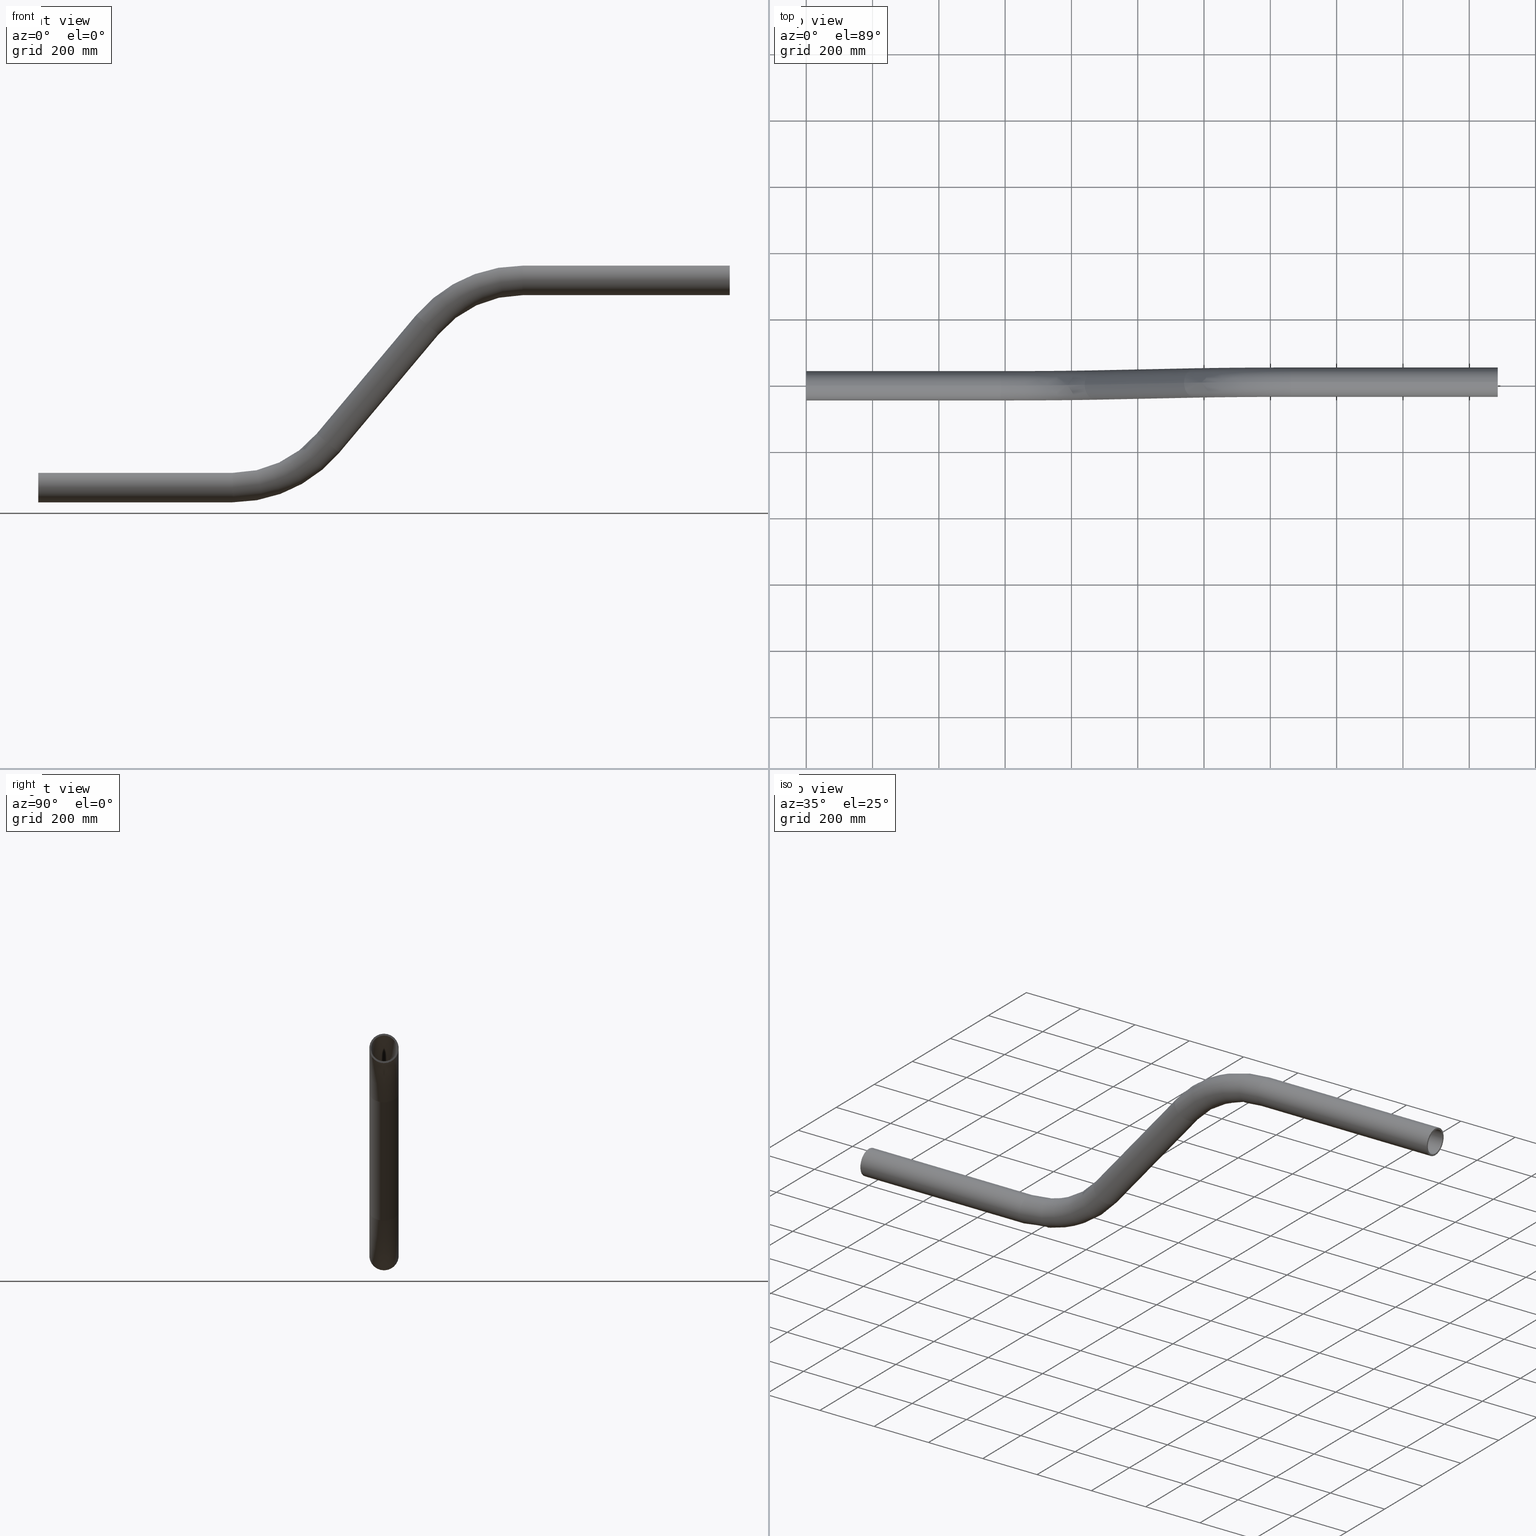
[diagram: canonical four-view strip — front | top / right | iso, engineering-drawing reading convention]
A machine part, canonical four-view strip (front | top / right | iso — engineering-drawing reading convention). The complete STEP part file that produces these views, byte-faithful:
ISO-10303-21;
HEADER;
FILE_DESCRIPTION (( 'STEP AP203' ),
    '1' );
FILE_NAME ('J003435-61_REV_.step',
    '2025-10-22T20:33:59',
    ( '' ),
    ( '' ),
    'SwSTEP 2.0',
    'SolidWorks 2024',
    '' );
FILE_SCHEMA (( 'CONFIG_CONTROL_DESIGN' ));
ENDSEC;

DATA;
#1 = SHAPE_DEFINITION_REPRESENTATION ( #654, #437 ) ;
#2 = CARTESIAN_POINT ( 'NONE',  ( 2086.038216172909415, 0.000000000000000000, 663.9500000000000455 ) ) ;
#3 = APPROVAL_PERSON_ORGANIZATION ( #49, #270, #399 ) ;
#4 = DIRECTION ( 'NONE',  ( 0.000000000000000000, 0.000000000000000000, 1.000000000000000000 ) ) ;
#5 = EDGE_CURVE ( 'NONE', #128, #118, #267, .T. ) ;
#6 = DIRECTION ( 'NONE',  ( -0.000000000000000000, -1.000000000000000000, 0.000000000000000000 ) ) ;
#7 = CIRCLE ( 'NONE', #38, 38.95000000000001705 ) ;
#8 = CARTESIAN_POINT ( 'NONE',  ( 1207.687597308056411, 5.443555022209986486E-15, 462.4734443818851446 ) ) ;
#9 = ADVANCED_FACE ( 'NONE', ( #617 ), #87, .F. ) ;
#10 = DIRECTION ( 'NONE',  ( -0.7660444431189791237, 0.000000000000000000, 0.6427876096865381417 ) ) ;
#11 = DIRECTION ( 'NONE',  ( 0.000000000000000000, 1.000000000000000000, 0.000000000000000000 ) ) ;
#12 = DESIGN_CONTEXT ( 'detailed design', #287, 'design' ) ;
#13 = AXIS2_PLACEMENT_3D ( 'NONE', #129, #449, #195 ) ;
#14 = CARTESIAN_POINT ( 'NONE',  ( 586.7355748789869949, 5.443555022209986486E-15, -44.45000000000000995 ) ) ;
#15 = AXIS2_PLACEMENT_3D ( 'NONE', #104, #364, #212 ) ;
#16 = EDGE_LOOP ( 'NONE', ( #568, #558, #450, #551 ) ) ;
#17 = DIRECTION ( 'NONE',  ( -0.000000000000000000, -1.000000000000000000, 0.000000000000000000 ) ) ;
#18 = DIRECTION ( 'NONE',  ( -0.000000000000000000, -1.000000000000000000, 0.000000000000000000 ) ) ;
#19 = ORIENTED_EDGE ( 'NONE', *, *, #177, .F. ) ;
#20 = FACE_OUTER_BOUND ( 'NONE', #298, .T. ) ;
#21 = AXIS2_PLACEMENT_3D ( 'NONE', #198, #602, #481 ) ;
#22 = ORIENTED_EDGE ( 'NONE', *, *, #417, .T. ) ;
#23 = DIRECTION ( 'NONE',  ( 0.000000000000000000, 0.000000000000000000, 1.000000000000000000 ) ) ;
#24 = DIRECTION ( 'NONE',  ( -0.000000000000000000, -1.000000000000000000, 0.000000000000000000 ) ) ;
#25 = ORIENTED_EDGE ( 'NONE', *, *, #642, .T. ) ;
#26 = EDGE_CURVE ( 'NONE', #292, #655, #276, .T. ) ;
#27 =( NAMED_UNIT ( * ) SI_UNIT ( $, .STERADIAN. ) SOLID_ANGLE_UNIT ( ) );
#28 = CYLINDRICAL_SURFACE ( 'NONE', #639, 38.95000000000003837 ) ;
#29 = VERTEX_POINT ( 'NONE', #8 ) ;
#30 = CARTESIAN_POINT ( 'NONE',  ( 586.7355748789869949, 4.769999282678940016E-15, -38.94999999999996732 ) ) ;
#31 = FACE_BOUND ( 'NONE', #86, .T. ) ;
#32 = ORIENTED_EDGE ( 'NONE', *, *, #395, .F. ) ;
#33 =( GEOMETRIC_REPRESENTATION_CONTEXT ( 3 ) GLOBAL_UNCERTAINTY_ASSIGNED_CONTEXT ( ( #327 ) ) GLOBAL_UNIT_ASSIGNED_CONTEXT ( ( #385, #188, #27 ) ) REPRESENTATION_CONTEXT ( 'NONE', 'WORKASPACE' ) );
#34 = SECURITY_CLASSIFICATION_LEVEL ( 'unclassified' ) ;
#35 = DIRECTION ( 'NONE',  ( 0.6427876096865375866, 0.000000000000000000, 0.7660444431189794567 ) ) ;
#36 = EDGE_CURVE ( 'NONE', #640, #330, #509, .T. ) ;
#37 = VERTEX_POINT ( 'NONE', #370 ) ;
#38 = AXIS2_PLACEMENT_3D ( 'NONE', #516, #153, #4 ) ;
#39 = DATE_AND_TIME ( #347, #116 ) ;
#40 = DIRECTION ( 'NONE',  ( -0.6427876096865378086, -0.000000000000000000, -0.7660444431189793457 ) ) ;
#41 = ORIENTED_EDGE ( 'NONE', *, *, #472, .T. ) ;
#42 = PERSON_AND_ORGANIZATION ( #170, #272 ) ;
#43 = DIRECTION ( 'NONE',  ( 1.000000000000000000, 0.000000000000000000, 0.000000000000000000 ) ) ;
#44 = VERTEX_POINT ( 'NONE', #611 ) ;
#45 = CIRCLE ( 'NONE', #213, 413.9499999999998181 ) ;
#46 = FACE_OUTER_BOUND ( 'NONE', #407, .T. ) ;
#47 = EDGE_CURVE ( 'NONE', #655, #122, #201, .T. ) ;
#48 = AXIS2_PLACEMENT_3D ( 'NONE', #521, #24, #529 ) ;
#49 = PERSON_AND_ORGANIZATION ( #170, #272 ) ;
#50 = FACE_OUTER_BOUND ( 'NONE', #633, .T. ) ;
#51 = DIRECTION ( 'NONE',  ( 1.000000000000000000, 0.000000000000000000, 0.000000000000000000 ) ) ;
#52 = DIRECTION ( 'NONE',  ( -0.000000000000000000, -1.000000000000000000, 0.000000000000000000 ) ) ;
#53 = DIRECTION ( 'NONE',  ( -0.6427876096865375866, -0.000000000000000000, -0.7660444431189794567 ) ) ;
#54 = CIRCLE ( 'NONE', #252, 38.95000000000001705 ) ;
#55 = CARTESIAN_POINT ( 'NONE',  ( 586.7355748789869949, 5.443555022209986486E-15, -44.45000000000000995 ) ) ;
#56 = ORIENTED_EDGE ( 'NONE', *, *, #483, .T. ) ;
#57 = EDGE_CURVE ( 'NONE', #118, #125, #149, .T. ) ;
#58 = VECTOR ( 'NONE', #218, 1000.000000000000000 ) ;
#59 = DIRECTION ( 'NONE',  ( -1.000000000000000000, -0.000000000000000000, -0.000000000000000000 ) ) ;
#60 = CC_DESIGN_PERSON_AND_ORGANIZATION_ASSIGNMENT ( #544, #84, ( #627 ) ) ;
#61 = AXIS2_PLACEMENT_3D ( 'NONE', #210, #507, #203 ) ;
#62 = APPROVAL_PERSON_ORGANIZATION ( #324, #185, #259 ) ;
#63 = CARTESIAN_POINT ( 'NONE',  ( 586.7355748789869949, -5.443555022209986486E-15, 375.0000000000000000 ) ) ;
#64 = ORIENTED_EDGE ( 'NONE', *, *, #268, .T. ) ;
#65 = AXIS2_PLACEMENT_3D ( 'NONE', #393, #193, #497 ) ;
#66 = DIRECTION ( 'NONE',  ( 0.000000000000000000, 0.000000000000000000, -1.000000000000000000 ) ) ;
#67 = ORIENTED_EDGE ( 'NONE', *, *, #303, .T. ) ;
#68 = CYLINDRICAL_SURFACE ( 'NONE', #275, 38.95000000000001705 ) ;
#69 = ORIENTED_EDGE ( 'NONE', *, *, #411, .T. ) ;
#70 = EDGE_CURVE ( 'NONE', #315, #128, #526, .T. ) ;
#71 = CARTESIAN_POINT ( 'NONE',  ( 586.7355748789869949, 0.000000000000000000, 375.0000000000000000 ) ) ;
#72 = CARTESIAN_POINT ( 'NONE',  ( 2086.038216172909415, 0.000000000000000000, 669.4500000000000455 ) ) ;
#73 = AXIS2_PLACEMENT_3D ( 'NONE', #432, #76, #238 ) ;
#74 = EDGE_LOOP ( 'NONE', ( #513, #182, #166, #464 ) ) ;
#75 = PRODUCT_DEFINITION ( 'UNKNOWN', '', #96, #12 ) ;
#76 = DIRECTION ( 'NONE',  ( -0.000000000000000000, -1.000000000000000000, 0.000000000000000000 ) ) ;
#77 = DIRECTION ( 'NONE',  ( 1.000000000000000000, 0.000000000000000000, 0.000000000000000000 ) ) ;
#78 = AXIS2_PLACEMENT_3D ( 'NONE', #172, #168, #231 ) ;
#79 = ORIENTED_EDGE ( 'NONE', *, *, #579, .T. ) ;
#80 = DIRECTION ( 'NONE',  ( 0.000000000000000000, 0.000000000000000000, 1.000000000000000000 ) ) ;
#81 = ORIENTED_EDGE ( 'NONE', *, *, #550, .T. ) ;
#82 = APPLICATION_PROTOCOL_DEFINITION ( 'international standard', 'config_control_design', 1994, #142 ) ;
#83 = DIRECTION ( 'NONE',  ( 1.000000000000000000, 0.000000000000000000, 0.000000000000000000 ) ) ;
#84 = PERSON_AND_ORGANIZATION_ROLE ( 'classification_officer' ) ;
#85 = DIRECTION ( 'NONE',  ( -0.6427876096865378086, -0.000000000000000000, -0.7660444431189793457 ) ) ;
#86 = EDGE_LOOP ( 'NONE', ( #41, #335 ) ) ;
#87 = TOROIDAL_SURFACE ( 'NONE', #141, 374.9999999999999432, 38.95000000000001705 ) ;
#88 = APPROVAL_ROLE ( '' ) ;
#89 = FACE_OUTER_BOUND ( 'NONE', #138, .T. ) ;
#90 = EDGE_CURVE ( 'NONE', #219, #37, #504, .T. ) ;
#91 = PERSON_AND_ORGANIZATION_ROLE ( 'design_owner' ) ;
#92 = DIRECTION ( 'NONE',  ( -1.000000000000000000, -0.000000000000000000, -3.551948570938521745E-16 ) ) ;
#93 = VERTEX_POINT ( 'NONE', #108 ) ;
#94 = PRODUCT_RELATED_PRODUCT_CATEGORY ( 'detail', '', ( #355 ) ) ;
#95 = AXIS2_PLACEMENT_3D ( 'NONE', #183, #17, #580 ) ;
#96 = PRODUCT_DEFINITION_FORMATION_WITH_SPECIFIED_SOURCE ( 'ANY', '', #355, .NOT_KNOWN. ) ;
#97 = CARTESIAN_POINT ( 'NONE',  ( 586.7355748789869949, 0.000000000000000000, 375.0000000000000000 ) ) ;
#98 = ORIENTED_EDGE ( 'NONE', *, *, #247, .F. ) ;
#99 = VECTOR ( 'NONE', #596, 1000.000000000000000 ) ;
#100 = CIRCLE ( 'NONE', #155, 38.95000000000003837 ) ;
#101 = ORIENTED_EDGE ( 'NONE', *, *, #47, .F. ) ;
#102 = PERSON_AND_ORGANIZATION ( #170, #272 ) ;
#103 = CARTESIAN_POINT ( 'NONE',  ( 1173.636921811417778, 0.000000000000000000, 491.0453536324516790 ) ) ;
#104 = CARTESIAN_POINT ( 'NONE',  ( 2086.038216172909415, 0.000000000000000000, 625.0000000000000000 ) ) ;
#105 = ADVANCED_FACE ( 'NONE', ( #256 ), #113, .F. ) ;
#106 = DIRECTION ( 'NONE',  ( 1.000000000000000000, 0.000000000000000000, 0.000000000000000000 ) ) ;
#107 = EDGE_CURVE ( 'NONE', #118, #640, #7, .T. ) ;
#108 = CARTESIAN_POINT ( 'NONE',  ( 0.000000000000000000, 0.000000000000000000, 44.45000000000000995 ) ) ;
#109 = AXIS2_PLACEMENT_3D ( 'NONE', #359, #6, #200 ) ;
#110 = CARTESIAN_POINT ( 'NONE',  ( 586.7355748789869949, -4.769999282678943171E-15, 375.0000000000000000 ) ) ;
#111 = ORIENTED_EDGE ( 'NONE', *, *, #373, .T. ) ;
#112 = CIRCLE ( 'NONE', #232, 44.44999999999994600 ) ;
#113 = CYLINDRICAL_SURFACE ( 'NONE', #430, 38.94999999999998153 ) ;
#114 = CARTESIAN_POINT ( 'NONE',  ( 1173.636921811417778, 0.000000000000000000, 491.0453536324517927 ) ) ;
#115 = ORIENTED_EDGE ( 'NONE', *, *, #167, .T. ) ;
#116 = LOCAL_TIME ( 7, 33, 59.00000000000000000, #448 ) ;
#117 = DIRECTION ( 'NONE',  ( 0.000000000000000000, 0.000000000000000000, 1.000000000000000000 ) ) ;
#118 = VERTEX_POINT ( 'NONE', #204 ) ;
#119 = CIRCLE ( 'NONE', #13, 419.4499999999998749 ) ;
#120 = CIRCLE ( 'NONE', #265, 38.95000000000003837 ) ;
#121 = DIRECTION ( 'NONE',  ( -1.000000000000000000, -0.000000000000000000, -3.551948570938521745E-16 ) ) ;
#122 = VERTEX_POINT ( 'NONE', #207 ) ;
#123 = EDGE_CURVE ( 'NONE', #44, #650, #332, .T. ) ;
#124 = CARTESIAN_POINT ( 'NONE',  ( 0.000000000000000000, 5.443555022209986486E-15, -44.45000000000000995 ) ) ;
#125 = VERTEX_POINT ( 'NONE', #404 ) ;
#126 = DIRECTION ( 'NONE',  ( 0.6427876096865378086, 0.000000000000000000, 0.7660444431189793457 ) ) ;
#127 = TOROIDAL_SURFACE ( 'NONE', #310, 374.9999999999999432, 44.45000000000000995 ) ;
#128 = VERTEX_POINT ( 'NONE', #512 ) ;
#129 = CARTESIAN_POINT ( 'NONE',  ( 586.7355748789869949, 0.000000000000000000, 375.0000000000000000 ) ) ;
#130 = VERTEX_POINT ( 'NONE', #608 ) ;
#131 = DIRECTION ( 'NONE',  ( 0.000000000000000000, 0.000000000000000000, -1.000000000000000000 ) ) ;
#132 = ORIENTED_EDGE ( 'NONE', *, *, #451, .T. ) ;
#133 = CARTESIAN_POINT ( 'NONE',  ( 1143.799490751933490, 0.000000000000000000, 516.0819310297423499 ) ) ;
#134 = CIRCLE ( 'NONE', #511, 44.45000000000000995 ) ;
#135 = LOCAL_TIME ( 7, 33, 59.00000000000000000, #301 ) ;
#136 = CARTESIAN_POINT ( 'NONE',  ( 0.000000000000000000, 0.000000000000000000, 0.000000000000000000 ) ) ;
#137 = FACE_OUTER_BOUND ( 'NONE', #525, .T. ) ;
#138 = EDGE_LOOP ( 'NONE', ( #574, #398, #191, #56 ) ) ;
#139 = AXIS2_PLACEMENT_3D ( 'NONE', #264, #409, #368 ) ;
#140 = EDGE_CURVE ( 'NONE', #330, #125, #410, .T. ) ;
#141 = AXIS2_PLACEMENT_3D ( 'NONE', #269, #505, #261 ) ;
#142 = APPLICATION_CONTEXT ( 'configuration controlled 3d designs of mechanical parts and assemblies' ) ;
#143 = COORDINATED_UNIVERSAL_TIME_OFFSET ( 10, 0, .AHEAD. ) ;
#144 = CARTESIAN_POINT ( 'NONE',  ( 2086.038216172909415, 0.000000000000000000, 625.0000000000000000 ) ) ;
#145 = CC_DESIGN_DATE_AND_TIME_ASSIGNMENT ( #414, #171, ( #627 ) ) ;
#146 = ORIENTED_EDGE ( 'NONE', *, *, #451, .F. ) ;
#147 = APPROVAL_STATUS ( 'not_yet_approved' ) ;
#148 = CARTESIAN_POINT ( 'NONE',  ( 1460.903587981035116, 0.000000000000000000, 250.0000000000000000 ) ) ;
#149 = LINE ( 'NONE', #565, #641 ) ;
#150 = CC_DESIGN_SECURITY_CLASSIFICATION ( #627, ( #96 ) ) ;
#151 = APPROVAL_DATE_TIME ( #501, #270 ) ;
#152 = DIRECTION ( 'NONE',  ( -0.6427876096865375866, -0.000000000000000000, -0.7660444431189794567 ) ) ;
#153 = DIRECTION ( 'NONE',  ( 1.000000000000000000, 0.000000000000000000, 0.000000000000000000 ) ) ;
#154 = VECTOR ( 'NONE', #85, 1000.000000000000000 ) ;
#155 = AXIS2_PLACEMENT_3D ( 'NONE', #175, #273, #624 ) ;
#156 = ADVANCED_FACE ( 'NONE', ( #453 ), #361, .F. ) ;
#157 = AXIS2_PLACEMENT_3D ( 'NONE', #465, #51, #657 ) ;
#158 = FACE_OUTER_BOUND ( 'NONE', #578, .T. ) ;
#159 = CARTESIAN_POINT ( 'NONE',  ( 586.7355748789869949, 4.769999282678943171E-15, -38.95000000000001705 ) ) ;
#160 = FACE_OUTER_BOUND ( 'NONE', #590, .T. ) ;
#161 = DIRECTION ( 'NONE',  ( -1.000000000000000000, -0.000000000000000000, -3.551948570938521745E-16 ) ) ;
#162 = ORIENTED_EDGE ( 'NONE', *, *, #426, .F. ) ;
#163 = AXIS2_PLACEMENT_3D ( 'NONE', #502, #652, #455 ) ;
#164 = CIRCLE ( 'NONE', #95, 330.5499999999997840 ) ;
#165 = CC_DESIGN_APPROVAL ( #270, ( #96 ) ) ;
#166 = ORIENTED_EDGE ( 'NONE', *, *, #346, .T. ) ;
#167 = EDGE_CURVE ( 'NONE', #29, #326, #209, .T. ) ;
#168 = DIRECTION ( 'NONE',  ( 1.000000000000000000, 0.000000000000000000, 0.000000000000000000 ) ) ;
#169 = ORIENTED_EDGE ( 'NONE', *, *, #653, .F. ) ;
#170 = PERSON ( 'UNSPECIFIED', 'UNSPECIFIED', 'UNSPECIFIED', ('UNSPECIFIED'), ('UNSPECIFIED'), ('UNSPECIFIED') ) ;
#171 = DATE_TIME_ROLE ( 'classification_date' ) ;
#172 = CARTESIAN_POINT ( 'NONE',  ( 586.7355748789869949, 0.000000000000000000, 0.000000000000000000 ) ) ;
#173 = EDGE_LOOP ( 'NONE', ( #554, #146, #282, #349 ) ) ;
#174 = CIRCLE ( 'NONE', #534, 413.9500000000000455 ) ;
#175 = CARTESIAN_POINT ( 'NONE',  ( 1460.903587981034661, 0.000000000000000000, 624.9999999999997726 ) ) ;
#176 = VERTEX_POINT ( 'NONE', #382 ) ;
#177 = EDGE_CURVE ( 'NONE', #122, #176, #380, .T. ) ;
#178 = DIRECTION ( 'NONE',  ( 1.000000000000000000, 0.000000000000000000, 1.165734175856414367E-15 ) ) ;
#179 = AXIS2_PLACEMENT_3D ( 'NONE', #467, #18, #66 ) ;
#180 = ORIENTED_EDGE ( 'NONE', *, *, #289, .T. ) ;
#181 = CARTESIAN_POINT ( 'NONE',  ( 1139.586246314779146, 0.000000000000000000, 519.6172628830182703 ) ) ;
#182 = ORIENTED_EDGE ( 'NONE', *, *, #249, .T. ) ;
#183 = CARTESIAN_POINT ( 'NONE',  ( 1460.903587981035116, 5.443555022209986486E-15, 250.0000000000000000 ) ) ;
#184 = CARTESIAN_POINT ( 'NONE',  ( 0.000000000000000000, 0.000000000000000000, 0.000000000000000000 ) ) ;
#185 = APPROVAL ( #614, 'UNSPECIFIED' ) ;
#186 = ORIENTED_EDGE ( 'NONE', *, *, #47, .T. ) ;
#187 = CIRCLE ( 'NONE', #392, 44.45000000000000995 ) ;
#188 =( NAMED_UNIT ( * ) PLANE_ANGLE_UNIT ( ) SI_UNIT ( $, .RADIAN. ) );
#189 = CARTESIAN_POINT ( 'NONE',  ( 2086.038216172909415, 0.000000000000000000, 625.0000000000000000 ) ) ;
#190 = TOROIDAL_SURFACE ( 'NONE', #179, 374.9999999999997726, 38.95000000000001705 ) ;
#191 = ORIENTED_EDGE ( 'NONE', *, *, #426, .T. ) ;
#192 = CALENDAR_DATE ( 2025, 23, 10 ) ;
#193 = DIRECTION ( 'NONE',  ( 1.000000000000000000, 0.000000000000000000, 1.165734175856414367E-15 ) ) ;
#194 = ORIENTED_EDGE ( 'NONE', *, *, #460, .F. ) ;
#195 = DIRECTION ( 'NONE',  ( 0.000000000000000000, 0.000000000000000000, 1.000000000000000000 ) ) ;
#196 = CC_DESIGN_PERSON_AND_ORGANIZATION_ASSIGNMENT ( #556, #91, ( #355 ) ) ;
#197 = DATE_TIME_ROLE ( 'creation_date' ) ;
#198 = CARTESIAN_POINT ( 'NONE',  ( 1173.636921811417778, 0.000000000000000000, 491.0453536324516790 ) ) ;
#199 = ORIENTED_EDGE ( 'NONE', *, *, #299, .F. ) ;
#200 = DIRECTION ( 'NONE',  ( 0.000000000000000000, 0.000000000000000000, -1.000000000000000000 ) ) ;
#201 = LINE ( 'NONE', #570, #304 ) ;
#202 = PERSON_AND_ORGANIZATION_ROLE ( 'creator' ) ;
#203 = DIRECTION ( 'NONE',  ( -0.7660444431189787906, 0.000000000000000000, 0.6427876096865383637 ) ) ;
#204 = CARTESIAN_POINT ( 'NONE',  ( 586.7355748789869949, 0.000000000000000000, 38.95000000000007390 ) ) ;
#205 = AXIS2_PLACEMENT_3D ( 'NONE', #605, #152, #458 ) ;
#206 = CYLINDRICAL_SURFACE ( 'NONE', #61, 44.44999999999991047 ) ;
#207 = CARTESIAN_POINT ( 'NONE',  ( 1460.903587981034661, 4.769999282678953427E-15, 586.0499999999997272 ) ) ;
#208 = AXIS2_PLACEMENT_3D ( 'NONE', #350, #83, #541 ) ;
#209 = CIRCLE ( 'NONE', #584, 44.44999999999994600 ) ;
#210 = CARTESIAN_POINT ( 'NONE',  ( 1173.636921811417778, 0.000000000000000000, 491.0453536324516790 ) ) ;
#211 = DIRECTION ( 'NONE',  ( 0.7660444431189791237, 0.000000000000000000, -0.6427876096865381417 ) ) ;
#212 = DIRECTION ( 'NONE',  ( 0.000000000000000000, 0.000000000000000000, -1.000000000000000000 ) ) ;
#213 = AXIS2_PLACEMENT_3D ( 'NONE', #148, #612, #313 ) ;
#214 = ADVANCED_FACE ( 'NONE', ( #387 ), #227, .T. ) ;
#215 = DIRECTION ( 'NONE',  ( 1.000000000000000000, 0.000000000000000000, 0.000000000000000000 ) ) ;
#216 = ORIENTED_EDGE ( 'NONE', *, *, #572, .F. ) ;
#217 = COORDINATED_UNIVERSAL_TIME_OFFSET ( 10, 0, .AHEAD. ) ;
#218 = DIRECTION ( 'NONE',  ( -1.000000000000000000, -0.000000000000000000, -0.000000000000000000 ) ) ;
#219 = VERTEX_POINT ( 'NONE', #72 ) ;
#220 = ADVANCED_FACE ( 'NONE', ( #340 ), #190, .F. ) ;
#221 = DIRECTION ( 'NONE',  ( -0.7660444431189783465, 0.000000000000000000, 0.6427876096865390299 ) ) ;
#222 = CARTESIAN_POINT ( 'NONE',  ( 2086.038216172909415, 5.443555022209986486E-15, 580.5499999999999545 ) ) ;
#223 = ORIENTED_EDGE ( 'NONE', *, *, #342, .T. ) ;
#224 = ADVANCED_FACE ( 'NONE', ( #20 ), #337, .T. ) ;
#225 = CIRCLE ( 'NONE', #648, 44.45000000000000995 ) ;
#226 = FACE_OUTER_BOUND ( 'NONE', #305, .T. ) ;
#227 = CYLINDRICAL_SURFACE ( 'NONE', #463, 44.44999999999998863 ) ;
#228 = ORIENTED_EDGE ( 'NONE', *, *, #322, .T. ) ;
#229 = TOROIDAL_SURFACE ( 'NONE', #582, 374.9999999999999432, 38.95000000000001705 ) ;
#230 = CARTESIAN_POINT ( 'NONE',  ( 839.9515655519659276, 0.000000000000000000, 162.5265556181147986 ) ) ;
#231 = DIRECTION ( 'NONE',  ( 0.000000000000000000, 0.000000000000000000, -1.000000000000000000 ) ) ;
#232 = AXIS2_PLACEMENT_3D ( 'NONE', #114, #423, #329 ) ;
#233 = ORIENTED_EDGE ( 'NONE', *, *, #328, .T. ) ;
#234 = CC_DESIGN_PERSON_AND_ORGANIZATION_ASSIGNMENT ( #656, #561, ( #96 ) ) ;
#235 = CARTESIAN_POINT ( 'NONE',  ( 586.7355748789869949, 0.000000000000000000, 0.000000000000000000 ) ) ;
#236 = LINE ( 'NONE', #435, #577 ) ;
#237 = ORIENTED_EDGE ( 'NONE', *, *, #167, .F. ) ;
#238 = DIRECTION ( 'NONE',  ( 0.000000000000000000, 0.000000000000000000, -1.000000000000000000 ) ) ;
#239 = CARTESIAN_POINT ( 'NONE',  ( 1203.474352870902067, 4.769999282678943171E-15, 466.0087762351610081 ) ) ;
#240 = CIRCLE ( 'NONE', #205, 38.94999999999998153 ) ;
#241 = EDGE_LOOP ( 'NONE', ( #388, #223, #391, #162 ) ) ;
#242 = CIRCLE ( 'NONE', #65, 44.44999999999998863 ) ;
#243 = AXIS2_PLACEMENT_3D ( 'NONE', #63, #11, #589 ) ;
#244 = CARTESIAN_POINT ( 'NONE',  ( 586.7355748789869949, 0.000000000000000000, 44.45000000000000995 ) ) ;
#245 = CLOSED_SHELL ( 'NONE', ( #524, #559, #528, #345, #214, #156, #476, #105, #646, #569, #293, #224, #386, #9, #622, #457, #508, #220, #547, #383, #277, #367 ) ) ;
#246 = ORIENTED_EDGE ( 'NONE', *, *, #107, .F. ) ;
#247 = EDGE_CURVE ( 'NONE', #486, #394, #571, .T. ) ;
#248 = CARTESIAN_POINT ( 'NONE',  ( 1460.903587981034661, 0.000000000000000000, 624.9999999999997726 ) ) ;
#249 = EDGE_CURVE ( 'NONE', #37, #530, #427, .T. ) ;
#250 = APPROVAL_DATE_TIME ( #651, #615 ) ;
#251 = CYLINDRICAL_SURFACE ( 'NONE', #21, 38.94999999999998153 ) ;
#252 = AXIS2_PLACEMENT_3D ( 'NONE', #593, #484, #221 ) ;
#253 = ORIENTED_EDGE ( 'NONE', *, *, #495, .F. ) ;
#254 = DIRECTION ( 'NONE',  ( 1.000000000000000000, 0.000000000000000000, 0.000000000000000000 ) ) ;
#255 = DIRECTION ( 'NONE',  ( -0.000000000000000000, -1.000000000000000000, 0.000000000000000000 ) ) ;
#256 = FACE_OUTER_BOUND ( 'NONE', #241, .T. ) ;
#257 = DIRECTION ( 'NONE',  ( 0.000000000000000000, 1.000000000000000000, 0.000000000000000000 ) ) ;
#258 = DIRECTION ( 'NONE',  ( 0.000000000000000000, 1.000000000000000000, 0.000000000000000000 ) ) ;
#259 = APPROVAL_ROLE ( '' ) ;
#260 = DIRECTION ( 'NONE',  ( 0.000000000000000000, 0.000000000000000000, -1.000000000000000000 ) ) ;
#261 = DIRECTION ( 'NONE',  ( 0.000000000000000000, 0.000000000000000000, 1.000000000000000000 ) ) ;
#262 = AXIS2_PLACEMENT_3D ( 'NONE', #564, #106, #510 ) ;
#263 = FACE_OUTER_BOUND ( 'NONE', #520, .T. ) ;
#264 = CARTESIAN_POINT ( 'NONE',  ( 0.000000000000000000, 0.000000000000000000, 0.000000000000000000 ) ) ;
#265 = AXIS2_PLACEMENT_3D ( 'NONE', #433, #215, #631 ) ;
#266 = ORIENTED_EDGE ( 'NONE', *, *, #579, .F. ) ;
#267 = CIRCLE ( 'NONE', #442, 336.0499999999999545 ) ;
#268 = EDGE_CURVE ( 'NONE', #326, #29, #112, .T. ) ;
#269 = CARTESIAN_POINT ( 'NONE',  ( 586.7355748789869949, 0.000000000000000000, 375.0000000000000000 ) ) ;
#270 = APPROVAL ( #147, 'UNSPECIFIED' ) ;
#271 = DIRECTION ( 'NONE',  ( 0.000000000000000000, 0.000000000000000000, 1.000000000000000000 ) ) ;
#272 = ORGANIZATION ( 'UNSPECIFIED', 'UNSPECIFIED', '' ) ;
#273 = DIRECTION ( 'NONE',  ( -1.000000000000000000, -0.000000000000000000, -1.165734175856414367E-15 ) ) ;
#274 = ORIENTED_EDGE ( 'NONE', *, *, #299, .T. ) ;
#275 = AXIS2_PLACEMENT_3D ( 'NONE', #334, #581, #629 ) ;
#276 = CIRCLE ( 'NONE', #15, 38.95000000000003837 ) ;
#277 = ADVANCED_FACE ( 'NONE', ( #474 ), #620, .T. ) ;
#278 = CARTESIAN_POINT ( 'NONE',  ( 2086.038216172909415, 0.000000000000000000, 625.0000000000000000 ) ) ;
#279 = EDGE_LOOP ( 'NONE', ( #378, #587, #434, #372 ) ) ;
#280 = DIRECTION ( 'NONE',  ( 1.000000000000000000, 0.000000000000000000, 0.000000000000000000 ) ) ;
#281 = FACE_OUTER_BOUND ( 'NONE', #436, .T. ) ;
#282 = ORIENTED_EDGE ( 'NONE', *, *, #177, .T. ) ;
#283 = AXIS2_PLACEMENT_3D ( 'NONE', #352, #255, #366 ) ;
#284 = DIRECTION ( 'NONE',  ( 0.000000000000000000, 1.000000000000000000, 0.000000000000000000 ) ) ;
#285 = DIRECTION ( 'NONE',  ( 0.000000000000000000, 0.000000000000000000, 1.000000000000000000 ) ) ;
#286 = VERTEX_POINT ( 'NONE', #377 ) ;
#287 = APPLICATION_CONTEXT ( 'configuration controlled 3d designs of mechanical parts and assemblies' ) ;
#288 = AXIS2_PLACEMENT_3D ( 'NONE', #371, #420, #117 ) ;
#289 = EDGE_CURVE ( 'NONE', #286, #122, #100, .T. ) ;
#290 = DIRECTION ( 'NONE',  ( 0.000000000000000000, 0.000000000000000000, -1.000000000000000000 ) ) ;
#291 = CARTESIAN_POINT ( 'NONE',  ( 874.0022410486042190, 0.000000000000000000, 133.9546463675484347 ) ) ;
#292 = VERTEX_POINT ( 'NONE', #466 ) ;
#293 = ADVANCED_FACE ( 'NONE', ( #281 ), #68, .F. ) ;
#294 = CARTESIAN_POINT ( 'NONE',  ( 0.000000000000000000, 0.000000000000000000, 0.000000000000000000 ) ) ;
#295 = DIRECTION ( 'NONE',  ( 0.7660444431189794567, 0.000000000000000000, -0.6427876096865375866 ) ) ;
#296 = EDGE_LOOP ( 'NONE', ( #314, #22 ) ) ;
#297 = TOROIDAL_SURFACE ( 'NONE', #376, 374.9999999999997726, 44.45000000000000995 ) ;
#298 = EDGE_LOOP ( 'NONE', ( #471, #32, #311, #25 ) ) ;
#299 = EDGE_CURVE ( 'NONE', #130, #530, #523, .T. ) ;
#300 = CIRCLE ( 'NONE', #491, 44.45000000000000995 ) ;
#301 = COORDINATED_UNIVERSAL_TIME_OFFSET ( 10, 0, .AHEAD. ) ;
#302 = CARTESIAN_POINT ( 'NONE',  ( 1139.586246314779146, 0.000000000000000000, 519.6172628830182703 ) ) ;
#303 = EDGE_CURVE ( 'NONE', #650, #394, #548, .T. ) ;
#304 = VECTOR ( 'NONE', #161, 1000.000000000000000 ) ;
#305 = EDGE_LOOP ( 'NONE', ( #542, #626, #67, #475 ) ) ;
#306 = COORDINATED_UNIVERSAL_TIME_OFFSET ( 10, 0, .AHEAD. ) ;
#307 = DIRECTION ( 'NONE',  ( 1.000000000000000000, 0.000000000000000000, 0.000000000000000000 ) ) ;
#308 = CALENDAR_DATE ( 2025, 23, 10 ) ;
#309 = CYLINDRICAL_SURFACE ( 'NONE', #163, 38.95000000000001705 ) ;
#310 = AXIS2_PLACEMENT_3D ( 'NONE', #97, #257, #452 ) ;
#311 = ORIENTED_EDGE ( 'NONE', *, *, #460, .T. ) ;
#312 = CC_DESIGN_PERSON_AND_ORGANIZATION_ASSIGNMENT ( #102, #488, ( #96 ) ) ;
#313 = DIRECTION ( 'NONE',  ( 0.000000000000000000, 0.000000000000000000, -1.000000000000000000 ) ) ;
#314 = ORIENTED_EDGE ( 'NONE', *, *, #90, .T. ) ;
#315 = VERTEX_POINT ( 'NONE', #586 ) ;
#316 = DIRECTION ( 'NONE',  ( -0.6427876096865378086, -0.000000000000000000, -0.7660444431189793457 ) ) ;
#317 = DIRECTION ( 'NONE',  ( 0.000000000000000000, 0.000000000000000000, 1.000000000000000000 ) ) ;
#318 = EDGE_LOOP ( 'NONE', ( #351, #603, #246, #506 ) ) ;
#319 = CARTESIAN_POINT ( 'NONE',  ( 1460.903587981035116, 0.000000000000000000, 250.0000000000000000 ) ) ;
#320 = CARTESIAN_POINT ( 'NONE',  ( 1173.636921811417778, 0.000000000000000000, 491.0453536324516790 ) ) ;
#321 = VERTEX_POINT ( 'NONE', #124 ) ;
#322 = EDGE_CURVE ( 'NONE', #655, #292, #120, .T. ) ;
#323 = DIRECTION ( 'NONE',  ( 0.7660444431189794567, 0.000000000000000000, -0.6427876096865375866 ) ) ;
#324 = PERSON_AND_ORGANIZATION ( #170, #272 ) ;
#325 = DIRECTION ( 'NONE',  ( -1.000000000000000000, -0.000000000000000000, -3.551948570938521745E-16 ) ) ;
#326 = VERTEX_POINT ( 'NONE', #181 ) ;
#327 = UNCERTAINTY_MEASURE_WITH_UNIT (LENGTH_MEASURE( 1.000000000000000082E-05 ), #385, 'distance_accuracy_value', 'NONE');
#328 = EDGE_CURVE ( 'NONE', #486, #321, #418, .T. ) ;
#329 = DIRECTION ( 'NONE',  ( 0.7660444431189782355, 0.000000000000000000, -0.6427876096865391409 ) ) ;
#330 = VERTEX_POINT ( 'NONE', #440 ) ;
#331 = AXIS2_PLACEMENT_3D ( 'NONE', #248, #591, #446 ) ;
#332 = CIRCLE ( 'NONE', #492, 44.45000000000000995 ) ;
#333 = CARTESIAN_POINT ( 'NONE',  ( 1173.636921811418006, 0.000000000000000000, 491.0453536324515085 ) ) ;
#334 = CARTESIAN_POINT ( 'NONE',  ( 586.7355748789869949, 0.000000000000000000, 0.000000000000000000 ) ) ;
#335 = ORIENTED_EDGE ( 'NONE', *, *, #140, .T. ) ;
#336 = DIRECTION ( 'NONE',  ( -0.7660444431189783465, 0.000000000000000000, 0.6427876096865390299 ) ) ;
#337 = CYLINDRICAL_SURFACE ( 'NONE', #288, 44.45000000000000995 ) ;
#338 = ORIENTED_EDGE ( 'NONE', *, *, #268, .F. ) ;
#339 = VECTOR ( 'NONE', #92, 1000.000000000000000 ) ;
#340 = FACE_OUTER_BOUND ( 'NONE', #173, .T. ) ;
#341 = EDGE_LOOP ( 'NONE', ( #401, #490 ) ) ;
#342 = EDGE_CURVE ( 'NONE', #176, #315, #400, .T. ) ;
#343 = DIRECTION ( 'NONE',  ( 0.000000000000000000, 1.000000000000000000, 0.000000000000000000 ) ) ;
#344 = DIRECTION ( 'NONE',  ( 0.000000000000000000, 0.000000000000000000, 1.000000000000000000 ) ) ;
#345 = ADVANCED_FACE ( 'NONE', ( #549 ), #229, .F. ) ;
#346 = EDGE_CURVE ( 'NONE', #530, #130, #242, .T. ) ;
#347 = CALENDAR_DATE ( 2025, 23, 10 ) ;
#348 = CARTESIAN_POINT ( 'NONE',  ( 2086.038216172909415, 0.000000000000000000, 625.0000000000000000 ) ) ;
#349 = ORIENTED_EDGE ( 'NONE', *, *, #634, .F. ) ;
#350 = CARTESIAN_POINT ( 'NONE',  ( 0.000000000000000000, 0.000000000000000000, 0.000000000000000000 ) ) ;
#351 = ORIENTED_EDGE ( 'NONE', *, *, #70, .F. ) ;
#352 = CARTESIAN_POINT ( 'NONE',  ( 1460.903587981035116, 0.000000000000000000, 250.0000000000000000 ) ) ;
#353 = ORIENTED_EDGE ( 'NONE', *, *, #572, .T. ) ;
#354 = CARTESIAN_POINT ( 'NONE',  ( 1460.903587981034661, 5.443555022210016463E-15, 580.5499999999998408 ) ) ;
#355 = PRODUCT ( 'J003435-61_REV_', 'J003435-61_REV_', '', ( #643 ) ) ;
#356 = AXIS2_PLACEMENT_3D ( 'NONE', #333, #381, #336 ) ;
#357 = DIRECTION ( 'NONE',  ( -1.000000000000000000, -0.000000000000000000, -0.000000000000000000 ) ) ;
#358 = LOCAL_TIME ( 7, 33, 59.00000000000000000, #143 ) ;
#359 = CARTESIAN_POINT ( 'NONE',  ( 1460.903587981035116, 0.000000000000000000, 250.0000000000000000 ) ) ;
#360 = AXIS2_PLACEMENT_3D ( 'NONE', #144, #307, #543 ) ;
#361 = CYLINDRICAL_SURFACE ( 'NONE', #480, 38.95000000000003837 ) ;
#362 = VECTOR ( 'NONE', #59, 1000.000000000000000 ) ;
#363 = DIRECTION ( 'NONE',  ( 0.000000000000000000, 0.000000000000000000, 1.000000000000000000 ) ) ;
#364 = DIRECTION ( 'NONE',  ( 1.000000000000000000, 0.000000000000000000, 0.000000000000000000 ) ) ;
#365 = EDGE_CURVE ( 'NONE', #44, #486, #119, .T. ) ;
#366 = DIRECTION ( 'NONE',  ( 0.000000000000000000, 0.000000000000000000, -1.000000000000000000 ) ) ;
#367 = ADVANCED_FACE ( 'NONE', ( #489, #638 ), #649, .T. ) ;
#368 = DIRECTION ( 'NONE',  ( 0.000000000000000000, 0.000000000000000000, -1.000000000000000000 ) ) ;
#369 = CIRCLE ( 'NONE', #73, 419.4499999999997613 ) ;
#370 = CARTESIAN_POINT ( 'NONE',  ( 2086.038216172909415, 5.443555022209988853E-15, 580.5499999999999545 ) ) ;
#371 = CARTESIAN_POINT ( 'NONE',  ( 586.7355748789869949, 0.000000000000000000, 0.000000000000000000 ) ) ;
#372 = ORIENTED_EDGE ( 'NONE', *, *, #303, .F. ) ;
#373 = EDGE_CURVE ( 'NONE', #650, #44, #300, .T. ) ;
#374 = DIRECTION ( 'NONE',  ( 0.000000000000000000, 0.000000000000000000, 1.000000000000000000 ) ) ;
#375 = ORIENTED_EDGE ( 'NONE', *, *, #346, .F. ) ;
#376 = AXIS2_PLACEMENT_3D ( 'NONE', #319, #52, #408 ) ;
#377 = CARTESIAN_POINT ( 'NONE',  ( 1460.903587981034661, 0.000000000000000000, 663.9499999999998181 ) ) ;
#378 = ORIENTED_EDGE ( 'NONE', *, *, #123, .F. ) ;
#379 = AXIS2_PLACEMENT_3D ( 'NONE', #532, #178, #518 ) ;
#380 = CIRCLE ( 'NONE', #48, 336.0499999999997272 ) ;
#381 = DIRECTION ( 'NONE',  ( 0.6427876096865378086, 0.000000000000000000, 0.7660444431189793457 ) ) ;
#382 = CARTESIAN_POINT ( 'NONE',  ( 1203.474352870902067, 4.769999282678943171E-15, 466.0087762351610081 ) ) ;
#383 = ADVANCED_FACE ( 'NONE', ( #485 ), #28, .F. ) ;
#384 = EDGE_LOOP ( 'NONE', ( #101, #228, #546, #180 ) ) ;
#385 =( LENGTH_UNIT ( ) NAMED_UNIT ( * ) SI_UNIT ( .MILLI., .METRE. ) );
#386 = ADVANCED_FACE ( 'NONE', ( #31, #137 ), #594, .F. ) ;
#387 = FACE_OUTER_BOUND ( 'NONE', #74, .T. ) ;
#388 = ORIENTED_EDGE ( 'NONE', *, *, #634, .T. ) ;
#389 = CIRCLE ( 'NONE', #262, 38.95000000000001705 ) ;
#390 = CARTESIAN_POINT ( 'NONE',  ( 1143.799490751933490, 0.000000000000000000, 516.0819310297423499 ) ) ;
#391 = ORIENTED_EDGE ( 'NONE', *, *, #70, .T. ) ;
#392 = AXIS2_PLACEMENT_3D ( 'NONE', #444, #43, #131 ) ;
#393 = CARTESIAN_POINT ( 'NONE',  ( 1460.903587981034661, 0.000000000000000000, 624.9999999999997726 ) ) ;
#394 = VERTEX_POINT ( 'NONE', #244 ) ;
#395 = EDGE_CURVE ( 'NONE', #394, #486, #187, .T. ) ;
#396 = LINE ( 'NONE', #536, #99 ) ;
#397 = DIRECTION ( 'NONE',  ( -1.000000000000000000, -0.000000000000000000, -3.551948570938521745E-16 ) ) ;
#398 = ORIENTED_EDGE ( 'NONE', *, *, #598, .T. ) ;
#399 = APPROVAL_ROLE ( '' ) ;
#400 = LINE ( 'NONE', #239, #429 ) ;
#401 = ORIENTED_EDGE ( 'NONE', *, *, #26, .F. ) ;
#402 = DIRECTION ( 'NONE',  ( -0.7660444431189787906, 0.000000000000000000, 0.6427876096865383637 ) ) ;
#403 = CC_DESIGN_PERSON_AND_ORGANIZATION_ASSIGNMENT ( #42, #202, ( #75 ) ) ;
#404 = CARTESIAN_POINT ( 'NONE',  ( 0.000000000000000000, 0.000000000000000000, 38.95000000000001705 ) ) ;
#405 = CC_DESIGN_APPROVAL ( #615, ( #75 ) ) ;
#406 = CARTESIAN_POINT ( 'NONE',  ( 874.0022410486042190, 0.000000000000000000, 133.9546463675484347 ) ) ;
#407 = EDGE_LOOP ( 'NONE', ( #216, #338, #482, #111 ) ) ;
#408 = DIRECTION ( 'NONE',  ( 0.000000000000000000, 0.000000000000000000, -1.000000000000000000 ) ) ;
#409 = DIRECTION ( 'NONE',  ( 1.000000000000000000, 0.000000000000000000, 0.000000000000000000 ) ) ;
#410 = CIRCLE ( 'NONE', #139, 38.95000000000001705 ) ;
#411 = EDGE_CURVE ( 'NONE', #219, #130, #396, .T. ) ;
#412 = DATE_AND_TIME ( #419, #535 ) ;
#413 = DIRECTION ( 'NONE',  ( 0.6427876096865375866, 0.000000000000000000, 0.7660444431189794567 ) ) ;
#414 = DATE_AND_TIME ( #493, #135 ) ;
#415 = VERTEX_POINT ( 'NONE', #133 ) ;
#416 = TOROIDAL_SURFACE ( 'NONE', #616, 374.9999999999999432, 44.45000000000000995 ) ;
#417 = EDGE_CURVE ( 'NONE', #37, #219, #468, .T. ) ;
#418 = LINE ( 'NONE', #14, #58 ) ;
#419 = CALENDAR_DATE ( 2025, 23, 10 ) ;
#420 = DIRECTION ( 'NONE',  ( -1.000000000000000000, -0.000000000000000000, -0.000000000000000000 ) ) ;
#421 = ORIENTED_EDGE ( 'NONE', *, *, #36, .T. ) ;
#422 = CARTESIAN_POINT ( 'NONE',  ( 0.000000000000000000, 0.000000000000000000, 0.000000000000000000 ) ) ;
#423 = DIRECTION ( 'NONE',  ( 0.6427876096865378086, 0.000000000000000000, 0.7660444431189793457 ) ) ;
#424 = ORIENTED_EDGE ( 'NONE', *, *, #653, .T. ) ;
#425 = AXIS2_PLACEMENT_3D ( 'NONE', #103, #316, #402 ) ;
#426 = EDGE_CURVE ( 'NONE', #415, #128, #545, .T. ) ;
#427 = LINE ( 'NONE', #222, #539 ) ;
#428 = ORIENTED_EDGE ( 'NONE', *, *, #289, .F. ) ;
#429 = VECTOR ( 'NONE', #40, 1000.000000000000000 ) ;
#430 = AXIS2_PLACEMENT_3D ( 'NONE', #320, #459, #10 ) ;
#431 = EDGE_CURVE ( 'NONE', #326, #650, #647, .T. ) ;
#432 = CARTESIAN_POINT ( 'NONE',  ( 1460.903587981035116, 0.000000000000000000, 250.0000000000000000 ) ) ;
#433 = CARTESIAN_POINT ( 'NONE',  ( 2086.038216172909415, 0.000000000000000000, 625.0000000000000000 ) ) ;
#434 = ORIENTED_EDGE ( 'NONE', *, *, #247, .T. ) ;
#435 = CARTESIAN_POINT ( 'NONE',  ( 586.7355748789869949, 0.000000000000000000, 44.45000000000000995 ) ) ;
#436 = EDGE_LOOP ( 'NONE', ( #563, #81, #515, #595 ) ) ;
#437 = ADVANCED_BREP_SHAPE_REPRESENTATION ( 'J003435-61_REV_', ( #454, #555 ), #33 ) ;
#438 = LOCAL_TIME ( 7, 33, 59.00000000000000000, #306 ) ;
#439 = CC_DESIGN_APPROVAL ( #185, ( #627 ) ) ;
#440 = CARTESIAN_POINT ( 'NONE',  ( 0.000000000000000000, 4.769999282678943171E-15, -38.95000000000001705 ) ) ;
#441 = ORIENTED_EDGE ( 'NONE', *, *, #249, .F. ) ;
#442 = AXIS2_PLACEMENT_3D ( 'NONE', #110, #258, #317 ) ;
#443 = DIRECTION ( 'NONE',  ( 0.000000000000000000, 0.000000000000000000, 1.000000000000000000 ) ) ;
#444 = CARTESIAN_POINT ( 'NONE',  ( 586.7355748789869949, 0.000000000000000000, 0.000000000000000000 ) ) ;
#445 = ORIENTED_EDGE ( 'NONE', *, *, #632, .T. ) ;
#446 = DIRECTION ( 'NONE',  ( 0.000000000000000000, 0.000000000000000000, -1.000000000000000000 ) ) ;
#447 = ORIENTED_EDGE ( 'NONE', *, *, #472, .F. ) ;
#448 = COORDINATED_UNIVERSAL_TIME_OFFSET ( 10, 0, .AHEAD. ) ;
#449 = DIRECTION ( 'NONE',  ( 0.000000000000000000, 1.000000000000000000, 0.000000000000000000 ) ) ;
#450 = ORIENTED_EDGE ( 'NONE', *, *, #5, .T. ) ;
#451 = EDGE_CURVE ( 'NONE', #122, #286, #522, .T. ) ;
#452 = DIRECTION ( 'NONE',  ( 0.000000000000000000, 0.000000000000000000, 1.000000000000000000 ) ) ;
#453 = FACE_OUTER_BOUND ( 'NONE', #498, .T. ) ;
#454 = MANIFOLD_SOLID_BREP ( 'Stainless chs 88.9 X 5.5 CHS(3)', #245 ) ;
#455 = DIRECTION ( 'NONE',  ( 0.000000000000000000, 0.000000000000000000, 1.000000000000000000 ) ) ;
#456 = CARTESIAN_POINT ( 'NONE',  ( 874.0022410486042190, 0.000000000000000000, 133.9546463675484347 ) ) ;
#457 = ADVANCED_FACE ( 'NONE', ( #89 ), #251, .F. ) ;
#458 = DIRECTION ( 'NONE',  ( 0.7660444431189791237, 0.000000000000000000, -0.6427876096865381417 ) ) ;
#459 = DIRECTION ( 'NONE',  ( -0.6427876096865378086, -0.000000000000000000, -0.7660444431189793457 ) ) ;
#460 = EDGE_CURVE ( 'NONE', #394, #93, #236, .T. ) ;
#461 = LINE ( 'NONE', #2, #339 ) ;
#462 = ORIENTED_EDGE ( 'NONE', *, *, #431, .F. ) ;
#463 = AXIS2_PLACEMENT_3D ( 'NONE', #573, #576, #285 ) ;
#464 = ORIENTED_EDGE ( 'NONE', *, *, #411, .F. ) ;
#465 = CARTESIAN_POINT ( 'NONE',  ( 2086.038216172909415, 0.000000000000000000, 625.0000000000000000 ) ) ;
#466 = CARTESIAN_POINT ( 'NONE',  ( 2086.038216172909415, 0.000000000000000000, 663.9500000000000455 ) ) ;
#467 = CARTESIAN_POINT ( 'NONE',  ( 1460.903587981035116, 0.000000000000000000, 250.0000000000000000 ) ) ;
#468 = CIRCLE ( 'NONE', #560, 44.44999999999998863 ) ;
#469 = ORIENTED_EDGE ( 'NONE', *, *, #517, .T. ) ;
#470 = CARTESIAN_POINT ( 'NONE',  ( 1173.636921811417778, 0.000000000000000000, 491.0453536324517927 ) ) ;
#471 = ORIENTED_EDGE ( 'NONE', *, *, #328, .F. ) ;
#472 = EDGE_CURVE ( 'NONE', #125, #330, #519, .T. ) ;
#473 = DIRECTION ( 'NONE',  ( 0.000000000000000000, 0.000000000000000000, -1.000000000000000000 ) ) ;
#474 = FACE_OUTER_BOUND ( 'NONE', #583, .T. ) ;
#475 = ORIENTED_EDGE ( 'NONE', *, *, #395, .T. ) ;
#476 = ADVANCED_FACE ( 'NONE', ( #158 ), #562, .T. ) ;
#477 = FACE_OUTER_BOUND ( 'NONE', #630, .T. ) ;
#478 = DIRECTION ( 'NONE',  ( 0.7660444431189782355, 0.000000000000000000, -0.6427876096865391409 ) ) ;
#479 = ORIENTED_EDGE ( 'NONE', *, *, #123, .T. ) ;
#480 = AXIS2_PLACEMENT_3D ( 'NONE', #613, #121, #374 ) ;
#481 = DIRECTION ( 'NONE',  ( -0.7660444431189791237, 0.000000000000000000, 0.6427876096865381417 ) ) ;
#482 = ORIENTED_EDGE ( 'NONE', *, *, #431, .T. ) ;
#483 = EDGE_CURVE ( 'NONE', #128, #315, #240, .T. ) ;
#484 = DIRECTION ( 'NONE',  ( 0.6427876096865378086, 0.000000000000000000, 0.7660444431189793457 ) ) ;
#485 = FACE_OUTER_BOUND ( 'NONE', #384, .T. ) ;
#486 = VERTEX_POINT ( 'NONE', #55 ) ;
#487 = AXIS2_PLACEMENT_3D ( 'NONE', #184, #607, #260 ) ;
#488 = PERSON_AND_ORGANIZATION_ROLE ( 'design_supplier' ) ;
#489 = FACE_BOUND ( 'NONE', #341, .T. ) ;
#490 = ORIENTED_EDGE ( 'NONE', *, *, #322, .F. ) ;
#491 = AXIS2_PLACEMENT_3D ( 'NONE', #291, #35, #295 ) ;
#492 = AXIS2_PLACEMENT_3D ( 'NONE', #406, #413, #323 ) ;
#493 = CALENDAR_DATE ( 2025, 23, 10 ) ;
#494 = DIRECTION ( 'NONE',  ( -0.6427876096865378086, -0.000000000000000000, -0.7660444431189793457 ) ) ;
#495 = EDGE_CURVE ( 'NONE', #292, #286, #461, .T. ) ;
#496 = APPROVAL_STATUS ( 'not_yet_approved' ) ;
#497 = DIRECTION ( 'NONE',  ( 0.000000000000000000, 0.000000000000000000, -1.000000000000000000 ) ) ;
#498 = EDGE_LOOP ( 'NONE', ( #592, #186, #132, #253 ) ) ;
#499 = CC_DESIGN_DATE_AND_TIME_ASSIGNMENT ( #39, #197, ( #75 ) ) ;
#500 = TOROIDAL_SURFACE ( 'NONE', #109, 374.9999999999997726, 44.45000000000000995 ) ;
#501 = DATE_AND_TIME ( #308, #358 ) ;
#502 = CARTESIAN_POINT ( 'NONE',  ( 586.7355748789869949, 0.000000000000000000, 0.000000000000000000 ) ) ;
#503 = FACE_OUTER_BOUND ( 'NONE', #279, .T. ) ;
#504 = CIRCLE ( 'NONE', #157, 44.44999999999998863 ) ;
#505 = DIRECTION ( 'NONE',  ( 0.000000000000000000, 1.000000000000000000, 0.000000000000000000 ) ) ;
#506 = ORIENTED_EDGE ( 'NONE', *, *, #5, .F. ) ;
#507 = DIRECTION ( 'NONE',  ( -0.6427876096865378086, -0.000000000000000000, -0.7660444431189793457 ) ) ;
#508 = ADVANCED_FACE ( 'NONE', ( #46 ), #206, .T. ) ;
#509 = LINE ( 'NONE', #159, #362 ) ;
#510 = DIRECTION ( 'NONE',  ( 0.000000000000000000, 0.000000000000000000, 1.000000000000000000 ) ) ;
#511 = AXIS2_PLACEMENT_3D ( 'NONE', #294, #588, #290 ) ;
#512 = CARTESIAN_POINT ( 'NONE',  ( 844.1648099891202719, 0.000000000000000000, 158.9912237648388782 ) ) ;
#513 = ORIENTED_EDGE ( 'NONE', *, *, #417, .F. ) ;
#514 = AXIS2_PLACEMENT_3D ( 'NONE', #456, #53, #211 ) ;
#515 = ORIENTED_EDGE ( 'NONE', *, *, #57, .T. ) ;
#516 = CARTESIAN_POINT ( 'NONE',  ( 586.7355748789869949, 0.000000000000000000, 5.551115123125782702E-14 ) ) ;
#517 = EDGE_CURVE ( 'NONE', #286, #415, #45, .T. ) ;
#518 = DIRECTION ( 'NONE',  ( 0.000000000000000000, 0.000000000000000000, -1.000000000000000000 ) ) ;
#519 = CIRCLE ( 'NONE', #487, 38.95000000000001705 ) ;
#520 = EDGE_LOOP ( 'NONE', ( #199, #424, #64, #266 ) ) ;
#521 = CARTESIAN_POINT ( 'NONE',  ( 1460.903587981035116, 4.769999282678943171E-15, 250.0000000000000000 ) ) ;
#522 = CIRCLE ( 'NONE', #331, 38.95000000000003837 ) ;
#523 = CIRCLE ( 'NONE', #379, 44.44999999999998863 ) ;
#524 = ADVANCED_FACE ( 'NONE', ( #263 ), #297, .T. ) ;
#525 = EDGE_LOOP ( 'NONE', ( #645, #600 ) ) ;
#526 = CIRCLE ( 'NONE', #514, 38.94999999999998153 ) ;
#527 = DIRECTION ( 'NONE',  ( 0.000000000000000000, 0.000000000000000000, 1.000000000000000000 ) ) ;
#528 = ADVANCED_FACE ( 'NONE', ( #503 ), #127, .T. ) ;
#529 = DIRECTION ( 'NONE',  ( 0.000000000000000000, 0.000000000000000000, -1.000000000000000000 ) ) ;
#530 = VERTEX_POINT ( 'NONE', #354 ) ;
#531 = LINE ( 'NONE', #585, #606 ) ;
#532 = CARTESIAN_POINT ( 'NONE',  ( 1460.903587981034661, 0.000000000000000000, 624.9999999999997726 ) ) ;
#533 = ORIENTED_EDGE ( 'NONE', *, *, #57, .F. ) ;
#534 = AXIS2_PLACEMENT_3D ( 'NONE', #557, #610, #363 ) ;
#535 = LOCAL_TIME ( 7, 33, 59.00000000000000000, #217 ) ;
#536 = CARTESIAN_POINT ( 'NONE',  ( 2086.038216172909415, 0.000000000000000000, 669.4500000000000455 ) ) ;
#537 = ORIENTED_EDGE ( 'NONE', *, *, #90, .F. ) ;
#538 = EDGE_CURVE ( 'NONE', #315, #640, #174, .T. ) ;
#539 = VECTOR ( 'NONE', #618, 1000.000000000000000 ) ;
#540 = CARTESIAN_POINT ( 'NONE',  ( 2086.038216172909415, 4.769999282678940805E-15, 586.0499999999999545 ) ) ;
#541 = DIRECTION ( 'NONE',  ( 0.000000000000000000, 0.000000000000000000, -1.000000000000000000 ) ) ;
#542 = ORIENTED_EDGE ( 'NONE', *, *, #365, .F. ) ;
#543 = DIRECTION ( 'NONE',  ( 0.000000000000000000, 0.000000000000000000, -1.000000000000000000 ) ) ;
#544 = PERSON_AND_ORGANIZATION ( #170, #272 ) ;
#545 = LINE ( 'NONE', #390, #154 ) ;
#546 = ORIENTED_EDGE ( 'NONE', *, *, #495, .T. ) ;
#547 = ADVANCED_FACE ( 'NONE', ( #160 ), #500, .T. ) ;
#548 = CIRCLE ( 'NONE', #243, 330.5499999999998977 ) ;
#549 = FACE_OUTER_BOUND ( 'NONE', #318, .T. ) ;
#550 = EDGE_CURVE ( 'NONE', #640, #118, #389, .T. ) ;
#551 = ORIENTED_EDGE ( 'NONE', *, *, #550, .F. ) ;
#552 = PERSON_AND_ORGANIZATION ( #170, #272 ) ;
#553 = FACE_OUTER_BOUND ( 'NONE', #567, .T. ) ;
#554 = ORIENTED_EDGE ( 'NONE', *, *, #517, .F. ) ;
#555 = AXIS2_PLACEMENT_3D ( 'NONE', #136, #443, #254 ) ;
#556 = PERSON_AND_ORGANIZATION ( #170, #272 ) ;
#557 = CARTESIAN_POINT ( 'NONE',  ( 586.7355748789869949, 0.000000000000000000, 375.0000000000000000 ) ) ;
#558 = ORIENTED_EDGE ( 'NONE', *, *, #483, .F. ) ;
#559 = ADVANCED_FACE ( 'NONE', ( #50 ), #625, .F. ) ;
#560 = AXIS2_PLACEMENT_3D ( 'NONE', #348, #77, #599 ) ;
#561 = PERSON_AND_ORGANIZATION_ROLE ( 'creator' ) ;
#562 = CYLINDRICAL_SURFACE ( 'NONE', #425, 44.44999999999991047 ) ;
#563 = ORIENTED_EDGE ( 'NONE', *, *, #36, .F. ) ;
#564 = CARTESIAN_POINT ( 'NONE',  ( 586.7355748789869949, 0.000000000000000000, 5.551115123125782702E-14 ) ) ;
#565 = CARTESIAN_POINT ( 'NONE',  ( 586.7355748789869949, 0.000000000000000000, 38.95000000000001705 ) ) ;
#566 = AXIS2_PLACEMENT_3D ( 'NONE', #235, #628, #23 ) ;
#567 = EDGE_LOOP ( 'NONE', ( #619, #421, #447, #533 ) ) ;
#568 = ORIENTED_EDGE ( 'NONE', *, *, #538, .F. ) ;
#569 = ADVANCED_FACE ( 'NONE', ( #553 ), #309, .F. ) ;
#570 = CARTESIAN_POINT ( 'NONE',  ( 2086.038216172909415, 4.769999282678943171E-15, 586.0499999999999545 ) ) ;
#571 = CIRCLE ( 'NONE', #78, 44.45000000000000995 ) ;
#572 = EDGE_CURVE ( 'NONE', #29, #44, #531, .T. ) ;
#573 = CARTESIAN_POINT ( 'NONE',  ( 2086.038216172909415, 0.000000000000000000, 625.0000000000000000 ) ) ;
#574 = ORIENTED_EDGE ( 'NONE', *, *, #342, .F. ) ;
#575 = APPROVAL_DATE_TIME ( #412, #185 ) ;
#576 = DIRECTION ( 'NONE',  ( -1.000000000000000000, -0.000000000000000000, -3.551948570938521745E-16 ) ) ;
#577 = VECTOR ( 'NONE', #635, 1000.000000000000000 ) ;
#578 = EDGE_LOOP ( 'NONE', ( #237, #353, #479, #462 ) ) ;
#579 = EDGE_CURVE ( 'NONE', #530, #29, #164, .T. ) ;
#580 = DIRECTION ( 'NONE',  ( 0.000000000000000000, 0.000000000000000000, -1.000000000000000000 ) ) ;
#581 = DIRECTION ( 'NONE',  ( -1.000000000000000000, -0.000000000000000000, -0.000000000000000000 ) ) ;
#582 = AXIS2_PLACEMENT_3D ( 'NONE', #644, #343, #80 ) ;
#583 = EDGE_LOOP ( 'NONE', ( #441, #537, #69, #274 ) ) ;
#584 = AXIS2_PLACEMENT_3D ( 'NONE', #470, #126, #478 ) ;
#585 = CARTESIAN_POINT ( 'NONE',  ( 1207.687597308056411, 5.443555022209986486E-15, 462.4734443818850309 ) ) ;
#586 = CARTESIAN_POINT ( 'NONE',  ( 903.8396721080887346, 4.769999282678943171E-15, 108.9180689702576359 ) ) ;
#587 = ORIENTED_EDGE ( 'NONE', *, *, #365, .T. ) ;
#588 = DIRECTION ( 'NONE',  ( 1.000000000000000000, 0.000000000000000000, 0.000000000000000000 ) ) ;
#589 = DIRECTION ( 'NONE',  ( 0.000000000000000000, 0.000000000000000000, 1.000000000000000000 ) ) ;
#590 = EDGE_LOOP ( 'NONE', ( #169, #375, #79, #115 ) ) ;
#591 = DIRECTION ( 'NONE',  ( -1.000000000000000000, -0.000000000000000000, -1.165734175856414367E-15 ) ) ;
#592 = ORIENTED_EDGE ( 'NONE', *, *, #26, .T. ) ;
#593 = CARTESIAN_POINT ( 'NONE',  ( 1173.636921811418006, 0.000000000000000000, 491.0453536324515085 ) ) ;
#594 = PLANE ( 'NONE',  #208 ) ;
#595 = ORIENTED_EDGE ( 'NONE', *, *, #140, .F. ) ;
#596 = DIRECTION ( 'NONE',  ( -1.000000000000000000, -0.000000000000000000, -3.551948570938521745E-16 ) ) ;
#597 = CIRCLE ( 'NONE', #356, 38.95000000000001705 ) ;
#598 = EDGE_CURVE ( 'NONE', #176, #415, #54, .T. ) ;
#599 = DIRECTION ( 'NONE',  ( 0.000000000000000000, 0.000000000000000000, -1.000000000000000000 ) ) ;
#600 = ORIENTED_EDGE ( 'NONE', *, *, #632, .F. ) ;
#601 = AXIS2_PLACEMENT_3D ( 'NONE', #278, #325, #271 ) ;
#602 = DIRECTION ( 'NONE',  ( -0.6427876096865378086, -0.000000000000000000, -0.7660444431189793457 ) ) ;
#603 = ORIENTED_EDGE ( 'NONE', *, *, #538, .T. ) ;
#604 = APPLICATION_PROTOCOL_DEFINITION ( 'international standard', 'config_control_design', 1994, #287 ) ;
#605 = CARTESIAN_POINT ( 'NONE',  ( 874.0022410486042190, 0.000000000000000000, 133.9546463675484347 ) ) ;
#606 = VECTOR ( 'NONE', #637, 1000.000000000000000 ) ;
#607 = DIRECTION ( 'NONE',  ( 1.000000000000000000, 0.000000000000000000, 0.000000000000000000 ) ) ;
#608 = CARTESIAN_POINT ( 'NONE',  ( 1460.903587981034661, 0.000000000000000000, 669.4499999999998181 ) ) ;
#609 = VECTOR ( 'NONE', #494, 1000.000000000000000 ) ;
#610 = DIRECTION ( 'NONE',  ( 0.000000000000000000, 1.000000000000000000, 0.000000000000000000 ) ) ;
#611 = CARTESIAN_POINT ( 'NONE',  ( 908.0529165452430789, 5.443555022209986486E-15, 105.3827371169816445 ) ) ;
#612 = DIRECTION ( 'NONE',  ( -0.000000000000000000, -1.000000000000000000, 0.000000000000000000 ) ) ;
#613 = CARTESIAN_POINT ( 'NONE',  ( 2086.038216172909415, 0.000000000000000000, 625.0000000000000000 ) ) ;
#614 = APPROVAL_STATUS ( 'not_yet_approved' ) ;
#615 = APPROVAL ( #496, 'UNSPECIFIED' ) ;
#616 = AXIS2_PLACEMENT_3D ( 'NONE', #71, #284, #527 ) ;
#617 = FACE_OUTER_BOUND ( 'NONE', #16, .T. ) ;
#618 = DIRECTION ( 'NONE',  ( -1.000000000000000000, -0.000000000000000000, -3.551948570938521745E-16 ) ) ;
#619 = ORIENTED_EDGE ( 'NONE', *, *, #107, .T. ) ;
#620 = CYLINDRICAL_SURFACE ( 'NONE', #601, 44.44999999999998863 ) ;
#621 = ORIENTED_EDGE ( 'NONE', *, *, #598, .F. ) ;
#622 = ADVANCED_FACE ( 'NONE', ( #226 ), #416, .T. ) ;
#623 = CYLINDRICAL_SURFACE ( 'NONE', #566, 44.45000000000000995 ) ;
#624 = DIRECTION ( 'NONE',  ( 0.000000000000000000, 0.000000000000000000, -1.000000000000000000 ) ) ;
#625 = TOROIDAL_SURFACE ( 'NONE', #283, 374.9999999999997726, 38.95000000000001705 ) ;
#626 = ORIENTED_EDGE ( 'NONE', *, *, #373, .F. ) ;
#627 = SECURITY_CLASSIFICATION ( '', '', #34 ) ;
#628 = DIRECTION ( 'NONE',  ( -1.000000000000000000, -0.000000000000000000, -0.000000000000000000 ) ) ;
#629 = DIRECTION ( 'NONE',  ( 0.000000000000000000, 0.000000000000000000, 1.000000000000000000 ) ) ;
#630 = EDGE_LOOP ( 'NONE', ( #98, #233, #445, #194 ) ) ;
#631 = DIRECTION ( 'NONE',  ( 0.000000000000000000, 0.000000000000000000, -1.000000000000000000 ) ) ;
#632 = EDGE_CURVE ( 'NONE', #321, #93, #134, .T. ) ;
#633 = EDGE_LOOP ( 'NONE', ( #428, #469, #621, #19 ) ) ;
#634 = EDGE_CURVE ( 'NONE', #415, #176, #597, .T. ) ;
#635 = DIRECTION ( 'NONE',  ( -1.000000000000000000, -0.000000000000000000, -0.000000000000000000 ) ) ;
#636 = APPROVAL_PERSON_ORGANIZATION ( #552, #615, #88 ) ;
#637 = DIRECTION ( 'NONE',  ( -0.6427876096865378086, -0.000000000000000000, -0.7660444431189793457 ) ) ;
#638 = FACE_OUTER_BOUND ( 'NONE', #296, .T. ) ;
#639 = AXIS2_PLACEMENT_3D ( 'NONE', #189, #397, #344 ) ;
#640 = VERTEX_POINT ( 'NONE', #30 ) ;
#641 = VECTOR ( 'NONE', #357, 1000.000000000000000 ) ;
#642 = EDGE_CURVE ( 'NONE', #93, #321, #225, .T. ) ;
#643 = MECHANICAL_CONTEXT ( 'NONE', #142, 'mechanical' ) ;
#644 = CARTESIAN_POINT ( 'NONE',  ( 586.7355748789869949, 0.000000000000000000, 375.0000000000000000 ) ) ;
#645 = ORIENTED_EDGE ( 'NONE', *, *, #642, .F. ) ;
#646 = ADVANCED_FACE ( 'NONE', ( #477 ), #623, .T. ) ;
#647 = LINE ( 'NONE', #302, #609 ) ;
#648 = AXIS2_PLACEMENT_3D ( 'NONE', #422, #280, #473 ) ;
#649 = PLANE ( 'NONE',  #360 ) ;
#650 = VERTEX_POINT ( 'NONE', #230 ) ;
#651 = DATE_AND_TIME ( #192, #438 ) ;
#652 = DIRECTION ( 'NONE',  ( -1.000000000000000000, -0.000000000000000000, -0.000000000000000000 ) ) ;
#653 = EDGE_CURVE ( 'NONE', #130, #326, #369, .T. ) ;
#654 = PRODUCT_DEFINITION_SHAPE ( 'NONE', 'NONE',  #75 ) ;
#655 = VERTEX_POINT ( 'NONE', #540 ) ;
#656 = PERSON_AND_ORGANIZATION ( #170, #272 ) ;
#657 = DIRECTION ( 'NONE',  ( 0.000000000000000000, 0.000000000000000000, -1.000000000000000000 ) ) ;
ENDSEC;
END-ISO-10303-21;
